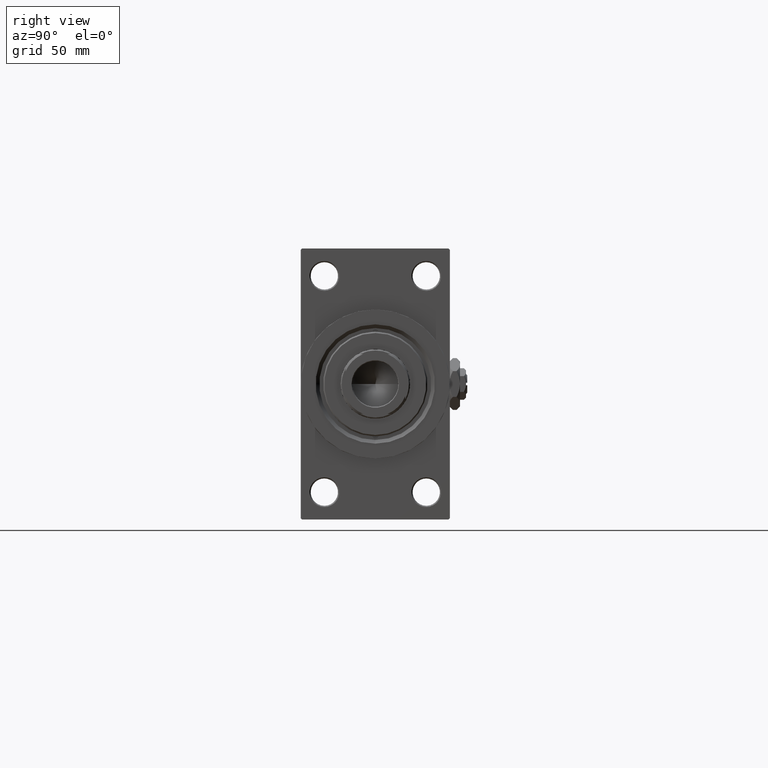
[diagram: clean part render]
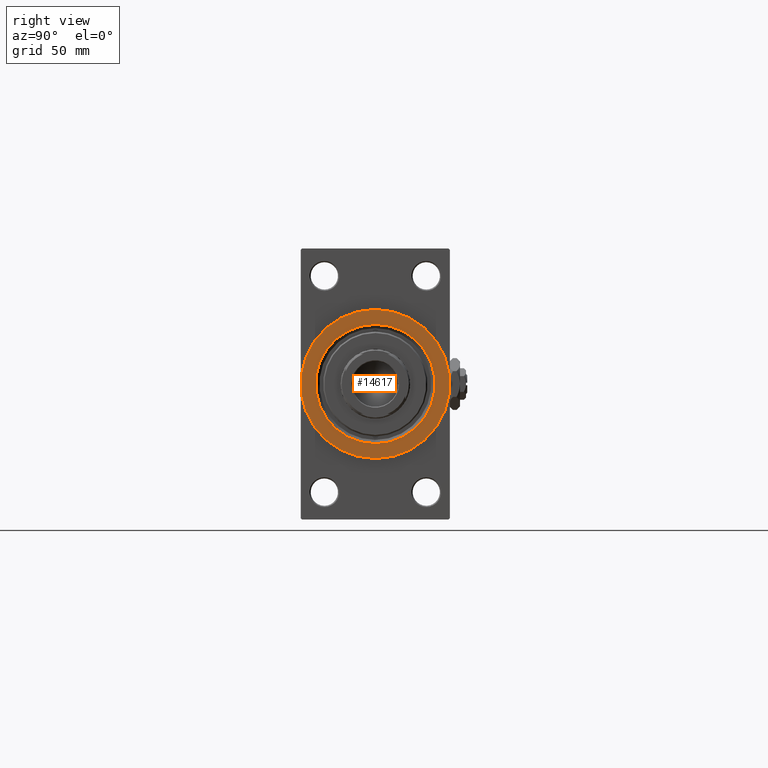
[diagram: same view with one face highlighted and labeled with its STEP entity id]
A machine part, right view. The second image highlights one B-rep face of the part: STEP entity #14617.
In plain terms, the highlighted planar face has unit normal (1, 0, 0).
Its self-contained STEP definition (entity closure, byte-faithful):
#342 = AXIS2_PLACEMENT_3D ( 'NONE', #29216, #13924, #22862 ) ;
#1022 = DIRECTION ( 'NONE',  ( 0.000000000000000000, 0.000000000000000000, -1.000000000000000000 ) ) ;
#1904 = CIRCLE ( 'NONE', #342, 30.00000000000000000 ) ;
#2828 = CARTESIAN_POINT ( 'NONE',  ( 228.0000000000000284, 2.939152317953647500E-15, 23.99999999999999645 ) ) ;
#4299 = DIRECTION ( 'NONE',  ( -1.000000000000000000, -0.000000000000000000, -0.000000000000000000 ) ) ;
#5154 = DIRECTION ( 'NONE',  ( -1.000000000000000000, -0.000000000000000000, -0.000000000000000000 ) ) ;
#6215 = CIRCLE ( 'NONE', #42250, 23.99999999999999645 ) ;
#6743 = PLANE ( 'NONE',  #44709 ) ;
#8463 = CARTESIAN_POINT ( 'NONE',  ( 228.0000000000000284, 0.000000000000000000, 30.00000000000000000 ) ) ;
#9419 = DIRECTION ( 'NONE',  ( 0.000000000000000000, 0.000000000000000000, -1.000000000000000000 ) ) ;
#10355 = ORIENTED_EDGE ( 'NONE', *, *, #42507, .T. ) ;
#11656 = CARTESIAN_POINT ( 'NONE',  ( 228.0000000000000284, 0.000000000000000000, 0.000000000000000000 ) ) ;
#11834 = EDGE_CURVE ( 'NONE', #28305, #35165, #6215, .T. ) ;
#13924 = DIRECTION ( 'NONE',  ( 1.000000000000000000, 0.000000000000000000, 0.000000000000000000 ) ) ;
#14617 = ADVANCED_FACE ( 'NONE', ( #25805, #41097 ), #6743, .T. ) ;
#16095 = CARTESIAN_POINT ( 'NONE',  ( 228.0000000000000284, 0.000000000000000000, 0.000000000000000000 ) ) ;
#19238 = CARTESIAN_POINT ( 'NONE',  ( 228.0000000000000284, 3.673940397442059178E-15, -30.00000000000000000 ) ) ;
#20087 = EDGE_LOOP ( 'NONE', ( #10355, #24683 ) ) ;
#22042 = CARTESIAN_POINT ( 'NONE',  ( 228.0000000000000284, 0.000000000000000000, 0.000000000000000000 ) ) ;
#22862 = DIRECTION ( 'NONE',  ( 0.000000000000000000, 0.000000000000000000, -1.000000000000000000 ) ) ;
#24176 = CIRCLE ( 'NONE', #35399, 23.99999999999999645 ) ;
#24683 = ORIENTED_EDGE ( 'NONE', *, *, #32935, .T. ) ;
#25262 = EDGE_CURVE ( 'NONE', #35165, #28305, #24176, .T. ) ;
#25805 = FACE_BOUND ( 'NONE', #42170, .T. ) ;
#27233 = CARTESIAN_POINT ( 'NONE',  ( 228.0000000000000284, 0.000000000000000000, -23.99999999999999645 ) ) ;
#27553 = DIRECTION ( 'NONE',  ( 0.000000000000000000, 0.000000000000000000, -1.000000000000000000 ) ) ;
#28305 = VERTEX_POINT ( 'NONE', #2828 ) ;
#28721 = AXIS2_PLACEMENT_3D ( 'NONE', #11656, #42514, #38496 ) ;
#29216 = CARTESIAN_POINT ( 'NONE',  ( 228.0000000000000284, 0.000000000000000000, 0.000000000000000000 ) ) ;
#30274 = VERTEX_POINT ( 'NONE', #8463 ) ;
#32695 = VERTEX_POINT ( 'NONE', #19238 ) ;
#32935 = EDGE_CURVE ( 'NONE', #32695, #30274, #1904, .T. ) ;
#33587 = DIRECTION ( 'NONE',  ( 1.000000000000000000, 0.000000000000000000, 0.000000000000000000 ) ) ;
#35021 = CIRCLE ( 'NONE', #28721, 30.00000000000000000 ) ;
#35165 = VERTEX_POINT ( 'NONE', #27233 ) ;
#35399 = AXIS2_PLACEMENT_3D ( 'NONE', #35753, #5154, #9419 ) ;
#35753 = CARTESIAN_POINT ( 'NONE',  ( 228.0000000000000284, 0.000000000000000000, 0.000000000000000000 ) ) ;
#38496 = DIRECTION ( 'NONE',  ( 0.000000000000000000, 0.000000000000000000, -1.000000000000000000 ) ) ;
#41097 = FACE_OUTER_BOUND ( 'NONE', #20087, .T. ) ;
#42170 = EDGE_LOOP ( 'NONE', ( #42403, #48055 ) ) ;
#42250 = AXIS2_PLACEMENT_3D ( 'NONE', #16095, #4299, #1022 ) ;
#42403 = ORIENTED_EDGE ( 'NONE', *, *, #25262, .T. ) ;
#42507 = EDGE_CURVE ( 'NONE', #30274, #32695, #35021, .T. ) ;
#42514 = DIRECTION ( 'NONE',  ( 1.000000000000000000, 0.000000000000000000, 0.000000000000000000 ) ) ;
#44709 = AXIS2_PLACEMENT_3D ( 'NONE', #22042, #33587, #27553 ) ;
#48055 = ORIENTED_EDGE ( 'NONE', *, *, #11834, .T. ) ;